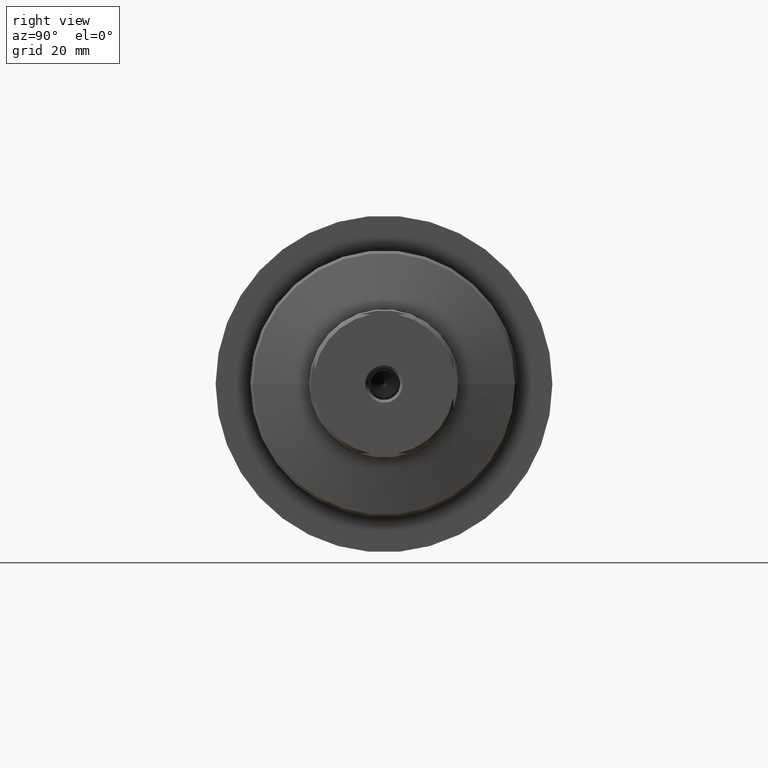
[diagram: clean part render]
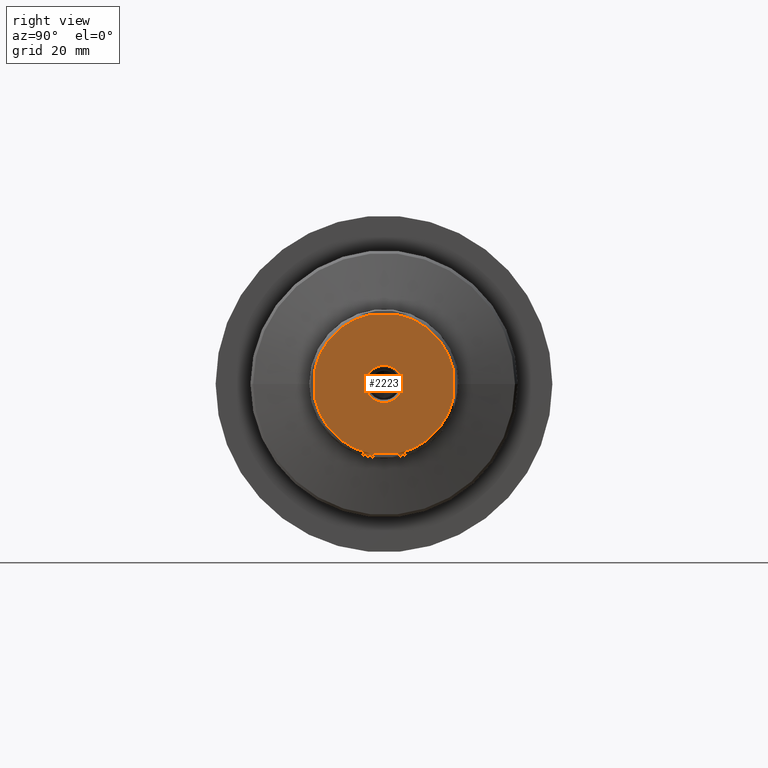
[diagram: same view with one face highlighted and labeled with its STEP entity id]
A machine part, right view. The second image highlights one B-rep face of the part: STEP entity #2223.
In plain terms, the highlighted planar face has unit normal (-1, -0, 0).
Its self-contained STEP definition (entity closure, byte-faithful):
#36 = CARTESIAN_POINT ( 'NONE',  ( 104.0000000000002274, 12.99999999999827516, 4.479118216792238982 ) ) ;
#49 = DIRECTION ( 'NONE',  ( 1.000000000000000000, 1.069542322069065801E-17, 0.000000000000000000 ) ) ;
#99 = CARTESIAN_POINT ( 'NONE',  ( 104.0000000000000142, 12.99999999999827516, 2.561737691498608083 ) ) ;
#128 = CARTESIAN_POINT ( 'NONE',  ( 103.9999999999997868, -13.00000000000172307, 2.561737691481097645 ) ) ;
#140 = CIRCLE ( 'NONE', #2115, 13.25000000000003197 ) ;
#148 = DIRECTION ( 'NONE',  ( 0.000000000000000000, -1.000000000000000000, 0.000000000000000000 ) ) ;
#150 = CARTESIAN_POINT ( 'NONE',  ( 104.0000000000000142, -1.723555391471920102E-12, 0.000000000000000000 ) ) ;
#163 = VERTEX_POINT ( 'NONE', #610 ) ;
#170 = CIRCLE ( 'NONE', #465, 13.25000000000003197 ) ;
#174 = AXIS2_PLACEMENT_3D ( 'NONE', #1268, #1985, #1978 ) ;
#189 = LINE ( 'NONE', #1400, #1965 ) ;
#190 = DIRECTION ( 'NONE',  ( 0.000000000000000000, -1.000000000000000000, 0.000000000000000000 ) ) ;
#224 = DIRECTION ( 'NONE',  ( 0.000000000000000000, -1.000000000000000000, 0.000000000000000000 ) ) ;
#242 = LINE ( 'NONE', #36, #1566 ) ;
#301 = VERTEX_POINT ( 'NONE', #821 ) ;
#319 = DIRECTION ( 'NONE',  ( 0.000000000000000000, -3.872912908332386132E-16, 1.000000000000000000 ) ) ;
#334 = DIRECTION ( 'NONE',  ( 1.000000000000000000, 1.069542322069065801E-17, 0.000000000000000000 ) ) ;
#377 = EDGE_CURVE ( 'NONE', #1789, #565, #2255, .T. ) ;
#379 = ORIENTED_EDGE ( 'NONE', *, *, #1201, .F. ) ;
#393 = CARTESIAN_POINT ( 'NONE',  ( 104.0000000000000853, 4.479118216790515916, -12.99999999999999822 ) ) ;
#402 = ORIENTED_EDGE ( 'NONE', *, *, #377, .F. ) ;
#420 = FACE_OUTER_BOUND ( 'NONE', #1320, .T. ) ;
#451 = VERTEX_POINT ( 'NONE', #128 ) ;
#457 = ORIENTED_EDGE ( 'NONE', *, *, #814, .T. ) ;
#465 = AXIS2_PLACEMENT_3D ( 'NONE', #1966, #334, #1076 ) ;
#472 = CIRCLE ( 'NONE', #2272, 13.24999999999999112 ) ;
#482 = CARTESIAN_POINT ( 'NONE',  ( 104.0000000000000142, -3.500000000002220002, 4.286263797016344511E-16 ) ) ;
#508 = CIRCLE ( 'NONE', #174, 3.500000000000374811 ) ;
#533 = DIRECTION ( 'NONE',  ( 1.000000000000000000, 1.069542322069065801E-17, 0.000000000000000000 ) ) ;
#534 = DIRECTION ( 'NONE',  ( -1.000000000000000000, -1.069542322069065801E-17, -0.000000000000000000 ) ) ;
#537 = CIRCLE ( 'NONE', #882, 3.500000000000374811 ) ;
#557 = EDGE_CURVE ( 'NONE', #1388, #1992, #537, .T. ) ;
#565 = VERTEX_POINT ( 'NONE', #1254 ) ;
#576 = EDGE_CURVE ( 'NONE', #163, #975, #170, .T. ) ;
#595 = DIRECTION ( 'NONE',  ( 0.000000000000000000, 3.872912908332386132E-16, -1.000000000000000000 ) ) ;
#610 = CARTESIAN_POINT ( 'NONE',  ( 104.0000000000000568, 2.561737691490083790, -12.99999999999999822 ) ) ;
#699 = AXIS2_PLACEMENT_3D ( 'NONE', #1883, #533, #148 ) ;
#799 = EDGE_CURVE ( 'NONE', #1992, #1388, #508, .T. ) ;
#814 = EDGE_CURVE ( 'NONE', #301, #1072, #140, .T. ) ;
#821 = CARTESIAN_POINT ( 'NONE',  ( 104.0000000000000142, -13.00000000000171951, -2.561737691481324575 ) ) ;
#834 = EDGE_CURVE ( 'NONE', #2292, #565, #472, .T. ) ;
#882 = AXIS2_PLACEMENT_3D ( 'NONE', #150, #534, #190 ) ;
#903 = CARTESIAN_POINT ( 'NONE',  ( 103.9999999999999716, -2.561737691490076685, -13.00000000000000000 ) ) ;
#975 = VERTEX_POINT ( 'NONE', #1343 ) ;
#999 = EDGE_CURVE ( 'NONE', #1789, #451, #1378, .T. ) ;
#1040 = EDGE_CURVE ( 'NONE', #301, #451, #189, .T. ) ;
#1048 = ORIENTED_EDGE ( 'NONE', *, *, #834, .T. ) ;
#1072 = VERTEX_POINT ( 'NONE', #903 ) ;
#1076 = DIRECTION ( 'NONE',  ( 0.000000000000000000, -1.000000000000000000, 0.000000000000000000 ) ) ;
#1132 = DIRECTION ( 'NONE',  ( -1.000000000000000000, -1.069542322069065801E-17, 0.000000000000000000 ) ) ;
#1201 = EDGE_CURVE ( 'NONE', #2292, #975, #242, .T. ) ;
#1217 = ORIENTED_EDGE ( 'NONE', *, *, #799, .T. ) ;
#1230 = EDGE_CURVE ( 'NONE', #163, #1072, #1474, .T. ) ;
#1235 = CARTESIAN_POINT ( 'NONE',  ( 104.0000000000000142, 3.499999999998645528, 0.000000000000000000 ) ) ;
#1254 = CARTESIAN_POINT ( 'NONE',  ( 104.0000000000000568, 2.561737691489861746, 13.00000000000000000 ) ) ;
#1268 = CARTESIAN_POINT ( 'NONE',  ( 104.0000000000000142, -1.723555391471920102E-12, 0.000000000000000000 ) ) ;
#1298 = VECTOR ( 'NONE', #2162, 1000.000000000000000 ) ;
#1320 = EDGE_LOOP ( 'NONE', ( #2048, #2069, #379, #1048, #402, #1500, #1761, #457 ) ) ;
#1343 = CARTESIAN_POINT ( 'NONE',  ( 104.0000000000002274, 12.99999999999827871, -2.561737691498814584 ) ) ;
#1378 = CIRCLE ( 'NONE', #699, 13.24999999999999112 ) ;
#1388 = VERTEX_POINT ( 'NONE', #482 ) ;
#1400 = CARTESIAN_POINT ( 'NONE',  ( 103.9999999999997868, -13.00000000000171951, -4.479118216792240759 ) ) ;
#1471 = CARTESIAN_POINT ( 'NONE',  ( 103.9999999999999716, -2.561737691489853752, 13.00000000000000000 ) ) ;
#1474 = LINE ( 'NONE', #393, #1298 ) ;
#1475 = DIRECTION ( 'NONE',  ( 0.000000000000000000, -1.000000000000000000, 0.000000000000000000 ) ) ;
#1476 = CARTESIAN_POINT ( 'NONE',  ( 104.0000000000000142, 8.673617379884035472E-16, 0.000000000000000000 ) ) ;
#1484 = EDGE_LOOP ( 'NONE', ( #1217, #1685 ) ) ;
#1500 = ORIENTED_EDGE ( 'NONE', *, *, #999, .T. ) ;
#1521 = CARTESIAN_POINT ( 'NONE',  ( 103.9999999999999432, -4.479118216793962048, 12.99999999999999822 ) ) ;
#1566 = VECTOR ( 'NONE', #595, 1000.000000000000000 ) ;
#1651 = CARTESIAN_POINT ( 'NONE',  ( 104.0000000000000142, 1.112324014951828568E-15, 0.000000000000000000 ) ) ;
#1653 = PLANE ( 'NONE',  #1964 ) ;
#1660 = CARTESIAN_POINT ( 'NONE',  ( 104.0000000000000142, 1.112324014951828568E-15, 0.000000000000000000 ) ) ;
#1685 = ORIENTED_EDGE ( 'NONE', *, *, #557, .T. ) ;
#1761 = ORIENTED_EDGE ( 'NONE', *, *, #1040, .F. ) ;
#1789 = VERTEX_POINT ( 'NONE', #1471 ) ;
#1826 = DIRECTION ( 'NONE',  ( 1.000000000000000000, 1.069542322069065801E-17, 0.000000000000000000 ) ) ;
#1837 = FACE_BOUND ( 'NONE', #1484, .T. ) ;
#1883 = CARTESIAN_POINT ( 'NONE',  ( 104.0000000000000142, 1.112324014951828568E-15, 0.000000000000000000 ) ) ;
#1964 = AXIS2_PLACEMENT_3D ( 'NONE', #1476, #1132, #2165 ) ;
#1965 = VECTOR ( 'NONE', #319, 1000.000000000000000 ) ;
#1966 = CARTESIAN_POINT ( 'NONE',  ( 104.0000000000000142, 1.112324014951828568E-15, 0.000000000000000000 ) ) ;
#1978 = DIRECTION ( 'NONE',  ( 0.000000000000000000, -1.000000000000000000, 0.000000000000000000 ) ) ;
#1985 = DIRECTION ( 'NONE',  ( -1.000000000000000000, -1.069542322069065801E-17, -0.000000000000000000 ) ) ;
#1992 = VERTEX_POINT ( 'NONE', #1235 ) ;
#2048 = ORIENTED_EDGE ( 'NONE', *, *, #1230, .F. ) ;
#2069 = ORIENTED_EDGE ( 'NONE', *, *, #576, .T. ) ;
#2115 = AXIS2_PLACEMENT_3D ( 'NONE', #1660, #1826, #224 ) ;
#2162 = DIRECTION ( 'NONE',  ( -1.549165163332954492E-14, -1.000000000000000000, -1.936456454166193066E-16 ) ) ;
#2165 = DIRECTION ( 'NONE',  ( 1.069542322069065801E-17, -1.000000000000000000, 0.000000000000000000 ) ) ;
#2223 = ADVANCED_FACE ( 'NONE', ( #1837, #420 ), #1653, .F. ) ;
#2255 = LINE ( 'NONE', #1521, #2301 ) ;
#2267 = DIRECTION ( 'NONE',  ( 1.549165163332954492E-14, 1.000000000000000000, 1.936456454166193066E-16 ) ) ;
#2272 = AXIS2_PLACEMENT_3D ( 'NONE', #1651, #49, #1475 ) ;
#2292 = VERTEX_POINT ( 'NONE', #99 ) ;
#2301 = VECTOR ( 'NONE', #2267, 1000.000000000000000 ) ;